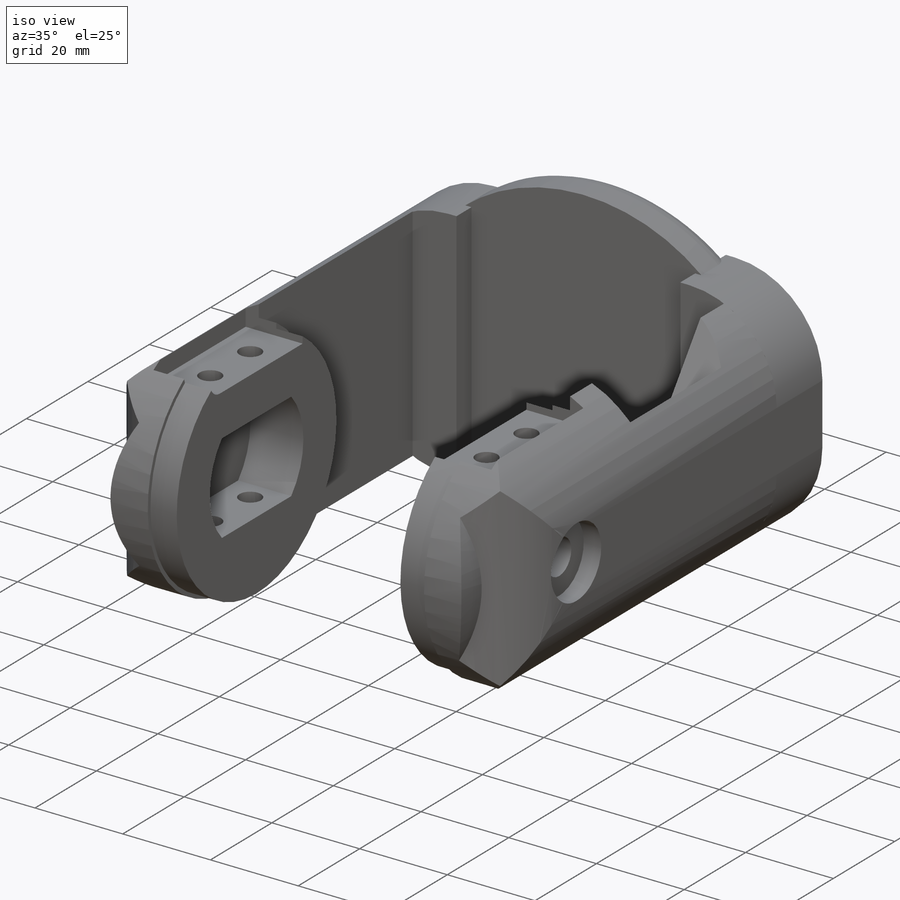
[diagram: iso view]
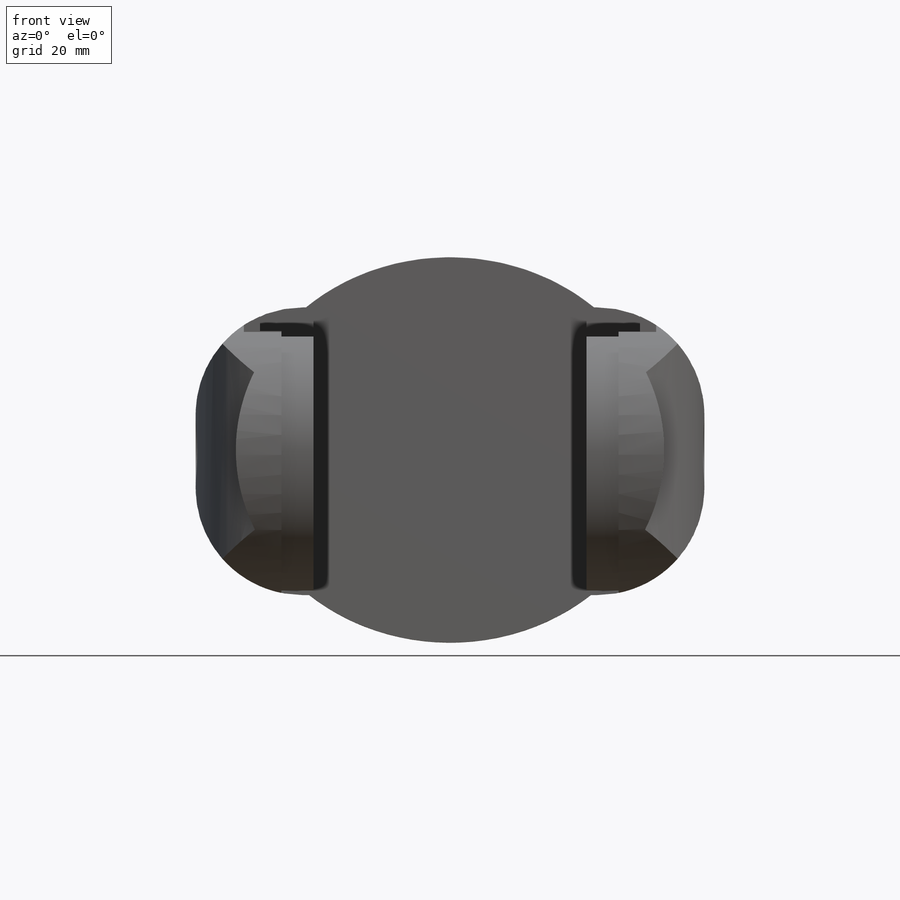
[diagram: front view]
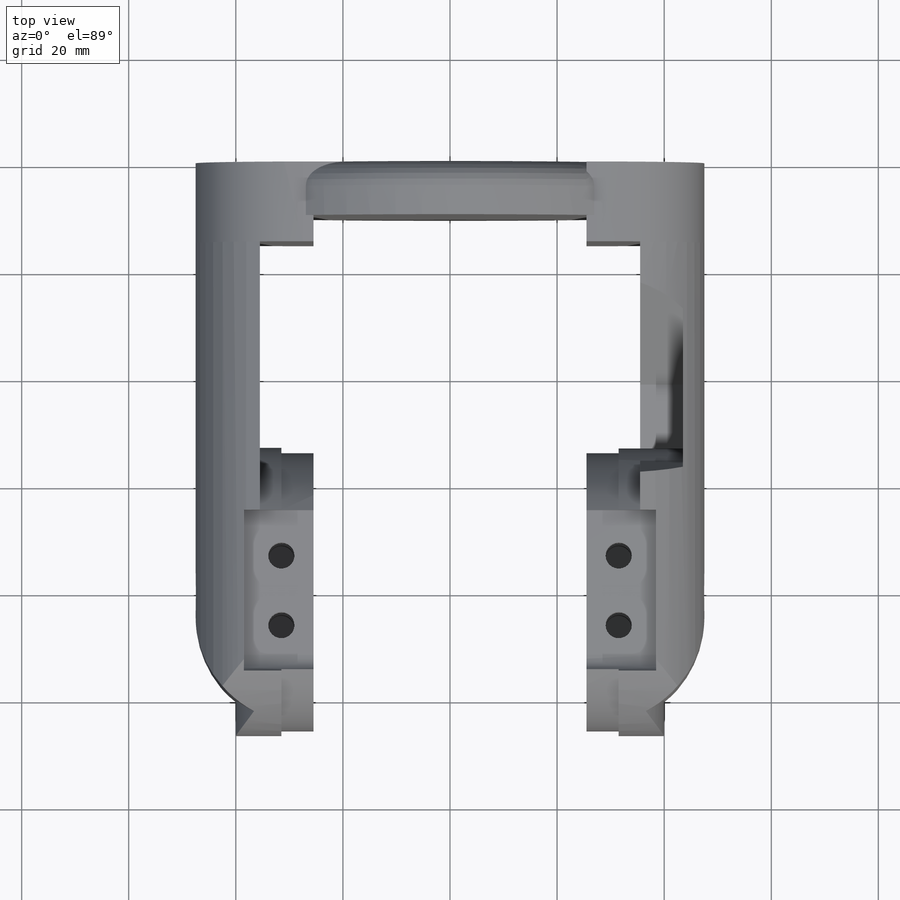
[diagram: top view]
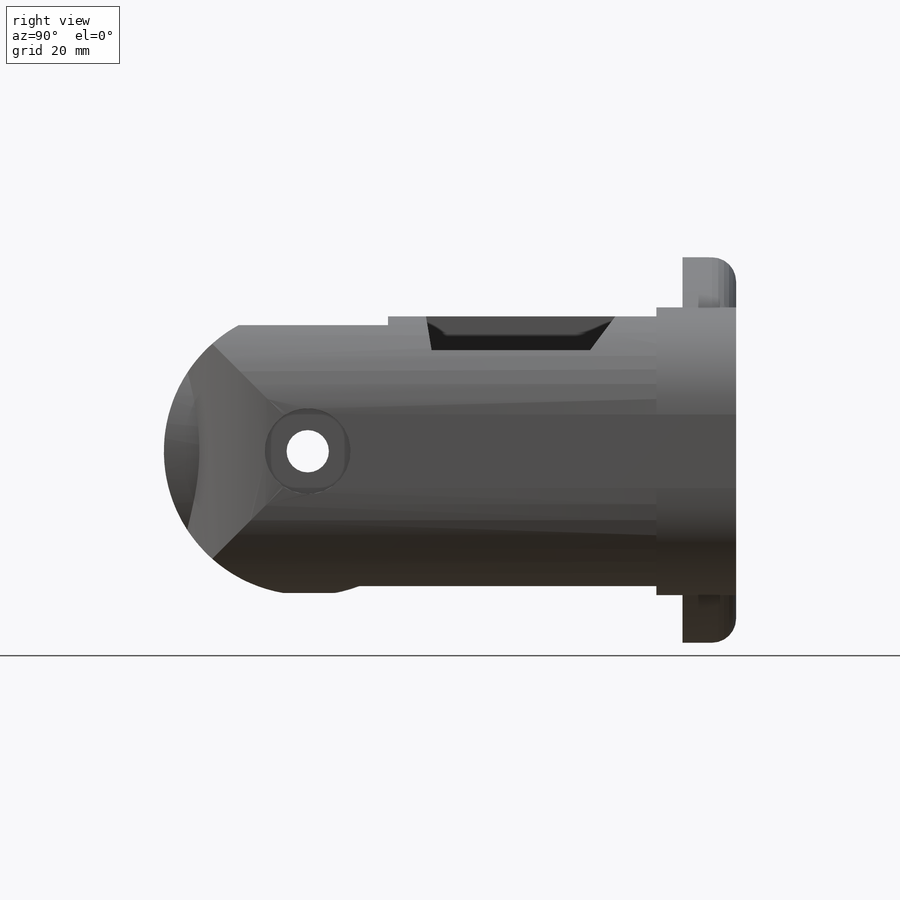
[diagram: right view]
SOLIDWORKS PART (.sldprt)
format: sldprt  version: not decoded by parser v0  size: 706,560 bytes
history: native  units: mm
features: sketch x14, cut_extrude x11, extrude x3, fillet x3, material x1, mirror x1, plane x1 (+14 scaffold rows collapsed)
feature tree (48):
  scaffold x14  (default folders/planes/origin — collapsed)
  material  "Material <not specified>"
  sketch  "Sketch1"  dims[D1=80.0mm D2=72.0mm]
  extrude  "Extrude1"  Depth=10mm
  sketch  "Sketch2"  dims[D2=14.5mm D1=0.0mm]
  extrude  "Extrude2"  Depth=100mm
  sketch  "Sketch9"
  extrude  "Extrude9"  Depth=22mm
  fillet  "Fillet1"  Radius=20mm
  fillet  "Fillet2"  Radius=4.5mm
  sketch  "Sketch3"  dims[D1=30.5mm D2=30.0mm D3=20.5mm]
  cut_extrude  "Extrude3"  Depth=12.1mm
  sketch  "Sketch4"  dims[D1=7.9mm]
  cut_extrude  "Extrude4"  Depth=24mm
  sketch  "Sketch5"  dims[D1=52.0mm D2=100.0mm]
  cut_extrude  "Extrude5"  Depth=6mm
  sketch  "Sketch6"
  cut_extrude  "Extrude6"  Depth=146mm
  sketch  "Sketch7"
  cut_extrude  "Extrude7"  Depth=10mm
  sketch  "Sketch11"  dims[D1=4.9mm D2=13.0mm D3=6.0mm]
  cut_extrude  "Extrude10"  Depth=9.967372mm
  sketch  "Sketch12"  dims[D1=30.0mm]
  cut_extrude  "Extrude11"  Depth=13mm
  sketch  "Sketch13"  dims[D1=16.0mm]
  cut_extrude  "Extrude12"  Depth=4mm
  sketch  "Sketch14"  dims[D1=4.9mm D2=20.0mm D3=7.5mm]
  cut_extrude  "Extrude13"  Depth=25mm
  mirror  "Mirror1"
  sketch  "Sketch8"
  cut_extrude  "Extrude8"  Depth=10mm
  sketch  "Sketch10"
  cut_extrude  "Cut-Extrude1"  Depth=8mm
  fillet  "Fillet3"  Radius=3mm
  plane  "Plane1"
decode coverage: 26 of 32 modeling features carry decoded parameters
note: suppression state not decoded; provenance and decode notes live in map.json
